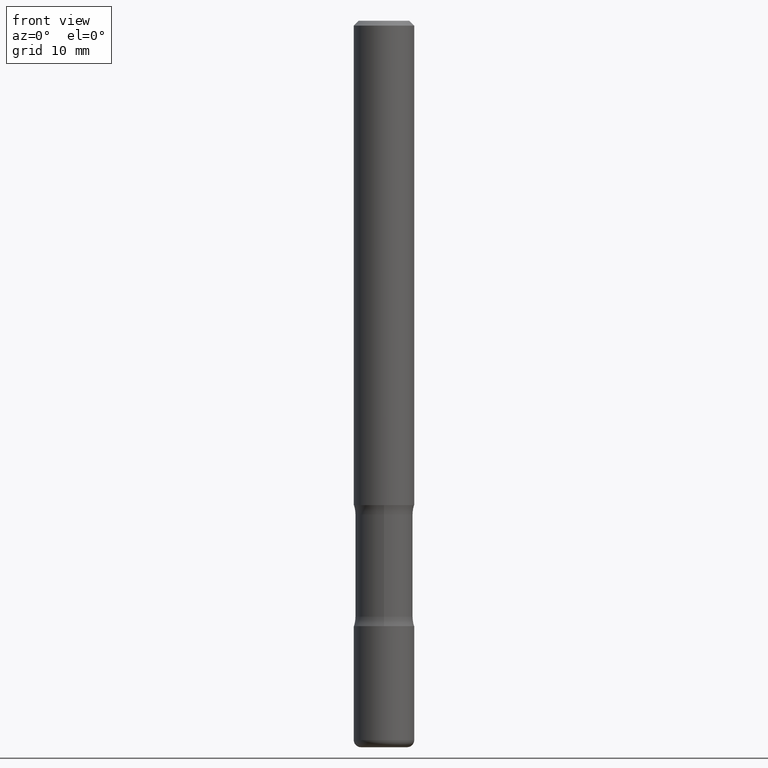
[diagram: clean part render]
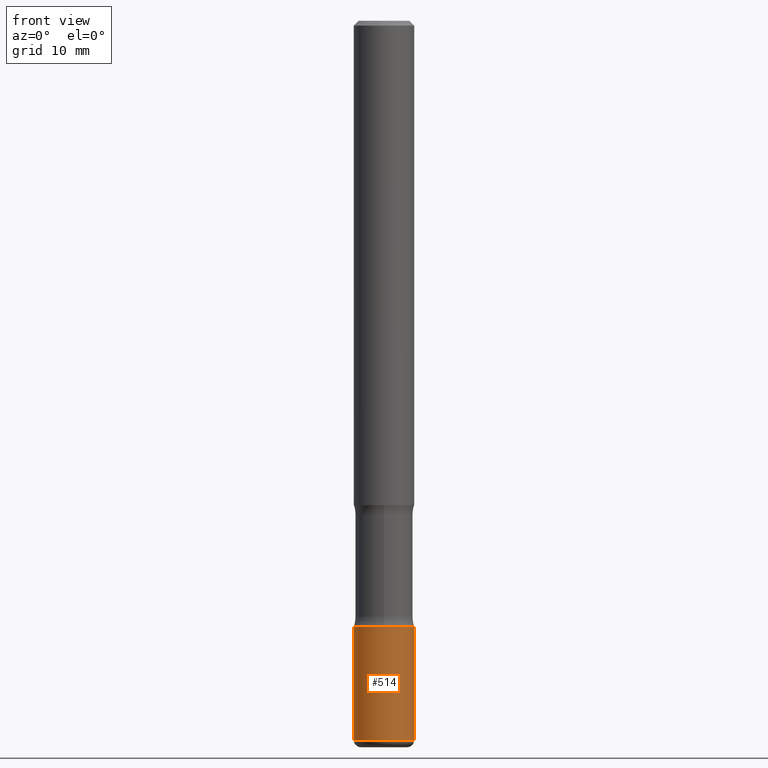
[diagram: same view with one face highlighted and labeled with its STEP entity id]
A machine part, front view. The second image highlights one B-rep face of the part: STEP entity #514.
In plain terms, the highlighted cylindrical surface (edge-blend (fillet) strip) has radius 3.175 mm, axis along (-0, 0, 1).
Its self-contained STEP definition (entity closure, byte-faithful):
#7 = CARTESIAN_POINT ( 'NONE',  ( 0.1250000000000000555, -9.601573681818646704E-15, -2.499999999999999556 ) ) ;
#12 = CARTESIAN_POINT ( 'NONE',  ( 0.000000000000000000, 0.000000000000000000, 0.000000000000000000 ) ) ;
#22 = EDGE_CURVE ( 'NONE', #314, #27, #349, .T. ) ;
#27 = VERTEX_POINT ( 'NONE', #63 ) ;
#36 = DIRECTION ( 'NONE',  ( 1.000000000000000000, -6.982962677686267499E-15, 0.000000000000000000 ) ) ;
#38 = CIRCLE ( 'NONE', #82, 0.1250000000000000555 ) ;
#58 = DIRECTION ( 'NONE',  ( 1.000000000000000000, -6.982962677686270655E-15, 0.000000000000000000 ) ) ;
#63 = CARTESIAN_POINT ( 'NONE',  ( -0.1250000000000000555, -8.661023042035876364E-15, -2.499999999999999556 ) ) ;
#66 = CARTESIAN_POINT ( 'NONE',  ( -0.1250000000000001110, 8.881784197001260212E-16, -6.148668862818637832E-30 ) ) ;
#82 = AXIS2_PLACEMENT_3D ( 'NONE', #198, #503, #36 ) ;
#89 = CARTESIAN_POINT ( 'NONE',  ( 0.1250000000000001110, -8.728703347107841277E-16, 6.095220969744924646E-30 ) ) ;
#95 = CARTESIAN_POINT ( 'NONE',  ( 7.263042354369856275E-29, -1.036969957636414298E-14, -2.970000000000000195 ) ) ;
#100 = AXIS2_PLACEMENT_3D ( 'NONE', #12, #183, #397 ) ;
#125 = CARTESIAN_POINT ( 'NONE',  ( -0.1250000000000000000, -9.481521156664016174E-15, -2.970000000000000195 ) ) ;
#132 = AXIS2_PLACEMENT_3D ( 'NONE', #95, #343, #58 ) ;
#144 = ORIENTED_EDGE ( 'NONE', *, *, #199, .F. ) ;
#183 = DIRECTION ( 'NONE',  ( -2.445468806185136597E-29, 3.491481338843145583E-15, 1.000000000000000000 ) ) ;
#198 = CARTESIAN_POINT ( 'NONE',  ( 6.113672015462840371E-29, -8.728703347107863365E-15, -2.499999999999999556 ) ) ;
#199 = EDGE_CURVE ( 'NONE', #27, #489, #38, .T. ) ;
#203 = VECTOR ( 'NONE', #522, 39.37007874015748143 ) ;
#207 = LINE ( 'NONE', #89, #490 ) ;
#223 = VERTEX_POINT ( 'NONE', #458 ) ;
#227 = CYLINDRICAL_SURFACE ( 'NONE', #100, 0.1250000000000001110 ) ;
#280 = EDGE_CURVE ( 'NONE', #223, #489, #207, .T. ) ;
#314 = VERTEX_POINT ( 'NONE', #125 ) ;
#339 = EDGE_LOOP ( 'NONE', ( #542, #549, #526, #144 ) ) ;
#343 = DIRECTION ( 'NONE',  ( -2.445468806185136597E-29, 3.491481338843145583E-15, 1.000000000000000000 ) ) ;
#349 = LINE ( 'NONE', #66, #203 ) ;
#363 = CIRCLE ( 'NONE', #132, 0.1250000000000001388 ) ;
#397 = DIRECTION ( 'NONE',  ( 1.000000000000000000, -6.982962677686266711E-15, 4.876176775795935232E-29 ) ) ;
#406 = EDGE_CURVE ( 'NONE', #314, #223, #363, .T. ) ;
#438 = FACE_OUTER_BOUND ( 'NONE', #339, .T. ) ;
#458 = CARTESIAN_POINT ( 'NONE',  ( 0.1250000000000000000, -1.124256991107492790E-14, -2.970000000000000195 ) ) ;
#489 = VERTEX_POINT ( 'NONE', #7 ) ;
#490 = VECTOR ( 'NONE', #558, 39.37007874015748143 ) ;
#503 = DIRECTION ( 'NONE',  ( -2.445468806185136597E-29, 3.491481338843145583E-15, 1.000000000000000000 ) ) ;
#514 = ADVANCED_FACE ( 'NONE', ( #438 ), #227, .T. ) ;
#522 = DIRECTION ( 'NONE',  ( -2.445468806185136877E-29, 3.491481338843145188E-15, 1.000000000000000000 ) ) ;
#526 = ORIENTED_EDGE ( 'NONE', *, *, #280, .T. ) ;
#542 = ORIENTED_EDGE ( 'NONE', *, *, #22, .F. ) ;
#549 = ORIENTED_EDGE ( 'NONE', *, *, #406, .T. ) ;
#558 = DIRECTION ( 'NONE',  ( -2.445468806185136877E-29, 3.491481338843145188E-15, 1.000000000000000000 ) ) ;